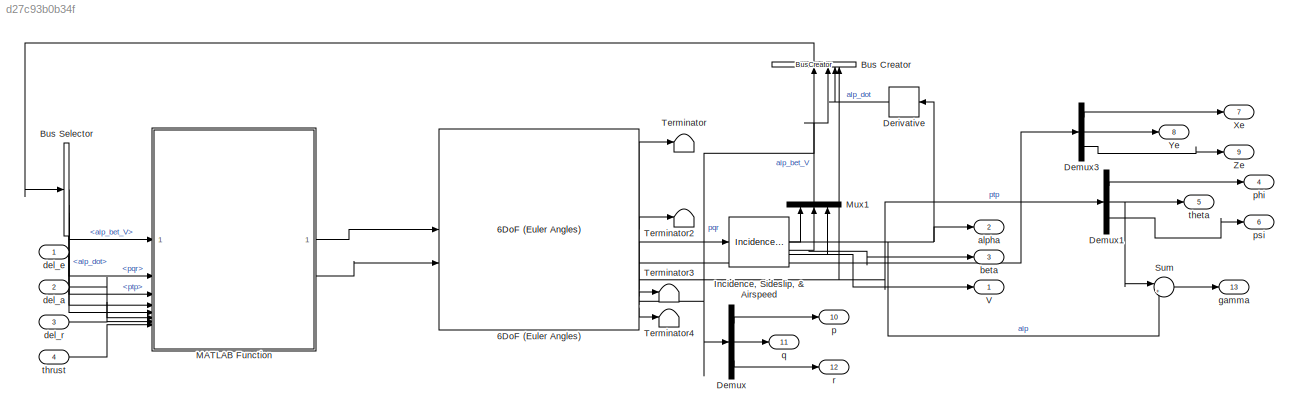
MODEL slx_d27c93b0b34f
KIND model
CONFIG AbsTol = auto
CONFIG EnableMultiTasking = off
CONFIG FixedStep = auto
CONFIG MaxStep = auto
CONFIG MinStep = auto
CONFIG RelTol = 1e-3
CONFIG SampleTimeConstraint = Unconstrained
CONFIG SolverName = VariableStepAuto
CONFIG StartTime = 0.0
CONFIG StopTime = 10.0
BLOCK [Reference] 6DoF (Euler Angles)  REF=aerolibobsolete/6DoF (Euler Angles)
  SourceBlock = aerolibobsolete/6DoF (Euler Angles)
  SourceType = 6DoF EoM (Body Axis)
BLOCK [BusCreator] Bus Creator
  DisplayOption = bar
  InheritFromInputs = on
  Inputs = 4
  NameLocation = right
BLOCK [BusSelector] Bus Selector
  OutputSignals = alp_bet_V,pqr,ptp,alp_dot
BLOCK [Demux] Demux
  Outputs = 3
BLOCK [Demux] Demux1
  Outputs = 3
BLOCK [Demux] Demux3
  Outputs = 3
BLOCK [Derivative] Derivative
  NameLocation = top
BLOCK [Reference] Incidence, Sideslip, & Airspeed  REF=aerolibasang/Incidence, Sideslip,
& Airspeed
  SourceBlock = aerolibasang/Incidence, Sideslip,\n& Airspeed
  SourceType = Incidence,Sideslip,&Airspeed
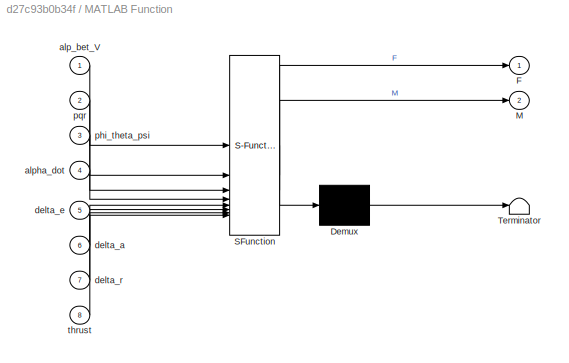
BLOCK [SubSystem] MATLAB Function
  ErrorFcn = Stateflow.Translate.translate
  PermitHierarchicalResolution = ExplicitOnly
  SFBlockType = MATLAB Function
  TreatAsAtomicUnit = on
BLOCK [Demux] MATLAB Function/ Demux 
  Outputs = 1
BLOCK [S-Function] MATLAB Function/ SFunction 
  EnableBusSupport = on
  FunctionName = sf_sfun
  PortCounts = [8 3]
  SFcnIsStateOwnerBlock = off
  SFunctionDeploymentMode = off
  Tag = Stateflow S-Function 2
BLOCK [Terminator] MATLAB Function/ Terminator 
BLOCK [Outport] MATLAB Function/F
BLOCK [Outport] MATLAB Function/M
  Port = 2
BLOCK [Inport] MATLAB Function/alp_bet_V
BLOCK [Inport] MATLAB Function/alpha_dot
  Port = 4
BLOCK [Inport] MATLAB Function/delta_a
  Port = 6
BLOCK [Inport] MATLAB Function/delta_e
  Port = 5
BLOCK [Inport] MATLAB Function/delta_r
  Port = 7
BLOCK [Inport] MATLAB Function/phi_theta_psi
  Port = 3
BLOCK [Inport] MATLAB Function/pqr
  Port = 2
BLOCK [Inport] MATLAB Function/thrust
  Port = 8
BLOCK [Mux] Mux1
  DisplayOption = bar
  Inputs = 3
  NameLocation = right
BLOCK [Sum] Sum
  Inputs = |+-
BLOCK [Terminator] Terminator
BLOCK [Terminator] Terminator2
BLOCK [Terminator] Terminator3
BLOCK [Terminator] Terminator4
BLOCK [Outport] V
BLOCK [Outport] Xe
  Port = 7
BLOCK [Outport] Ye
  Port = 8
BLOCK [Outport] Ze
  Port = 9
BLOCK [Outport] alpha
  Port = 2
BLOCK [Outport] beta
  Port = 3
BLOCK [Inport] del_a
  Port = 2
BLOCK [Inport] del_e
BLOCK [Inport] del_r
  Port = 3
BLOCK [Outport] gamma
  Port = 13
BLOCK [Outport] p
  Port = 10
BLOCK [Outport] phi
  Port = 4
BLOCK [Outport] psi
  Port = 6
BLOCK [Outport] q
  Port = 11
BLOCK [Outport] r
  Port = 12
BLOCK [Outport] theta
  Port = 5
BLOCK [Inport] thrust
  Port = 4
LINE 6DoF (Euler Angles):1 -> Terminator:1
LINE 6DoF (Euler Angles):2 -> Demux3:1
NET 6DoF (Euler Angles):3 -> Bus Creator:4, Demux1:1
LINE 6DoF (Euler Angles):4 -> Terminator2:1
LINE 6DoF (Euler Angles):5 -> Incidence, Sideslip, & Airspeed:1
NET 6DoF (Euler Angles):6 -> Bus Creator:1, Demux:1
LINE 6DoF (Euler Angles):7 -> Terminator3:1
LINE 6DoF (Euler Angles):8 -> Terminator4:1
LINE Bus Creator:1 -> Bus Selector:1
LINE Bus Selector:1 -> MATLAB Function:1
LINE Bus Selector:2 -> MATLAB Function:2
LINE Bus Selector:3 -> MATLAB Function:3
LINE Bus Selector:4 -> MATLAB Function:4
LINE Demux1:1 -> phi:1
NET Demux1:2 -> Sum:1, theta:1
LINE Demux1:3 -> psi:1
LINE Demux3:1 -> Xe:1
LINE Demux3:2 -> Ye:1
LINE Demux3:3 -> Ze:1
LINE Demux:1 -> p:1
LINE Demux:2 -> q:1
LINE Demux:3 -> r:1
LINE Derivative:1 -> Bus Creator:3
NET Incidence, Sideslip, & Airspeed:1 -> Derivative:1, Mux1:1, Sum:2, alpha:1
NET Incidence, Sideslip, & Airspeed:2 -> Mux1:2, beta:1
NET Incidence, Sideslip, & Airspeed:3 -> Mux1:3, V:1
LINE MATLAB Function:1 -> 6DoF (Euler Angles):1
LINE MATLAB Function:2 -> 6DoF (Euler Angles):2
LINE Mux1:1 -> Bus Creator:2
LINE Sum:1 -> gamma:1
LINE del_a:1 -> MATLAB Function:6
LINE del_e:1 -> MATLAB Function:5
LINE del_r:1 -> MATLAB Function:7
LINE thrust:1 -> MATLAB Function:8
note: NET lines group one-source signal fan-out (src -> all destinations, sorted); 1:1 wires keep LINE
CHART MATLAB Function states=1 transitions=1
  STATE_LABEL 'eML_blk_kernel()'
  STATE_LABEL 'SCRIPT:\nfunction [F, M] = Force_Aerosonde(alp_bet_V, pqr, phi_theta_psi, alpha_dot, delta_e, delta_a, delta_r, thrust)\nF = zeros([3 1]);\nM = zeros([3 1]);\n\nalpha = alp_bet_V(1);\nbeta = alp_bet_V(2);\nV = alp_bet_V(3);\n\np = pqr(1);\nq = pqr(2);\nr = pqr(3);\n\nphi = phi_theta_psi(1);\ntheta = phi_theta_psi(2);\npsi = phi_theta_psi(3);\n\ng = 9.8;\nrho = 1.2682;\n\nm = 17;     % 1)a)11.458, b)+1.9344, c)+2.1625...<+2135ch>'
CHART  states=0 transitions=0
